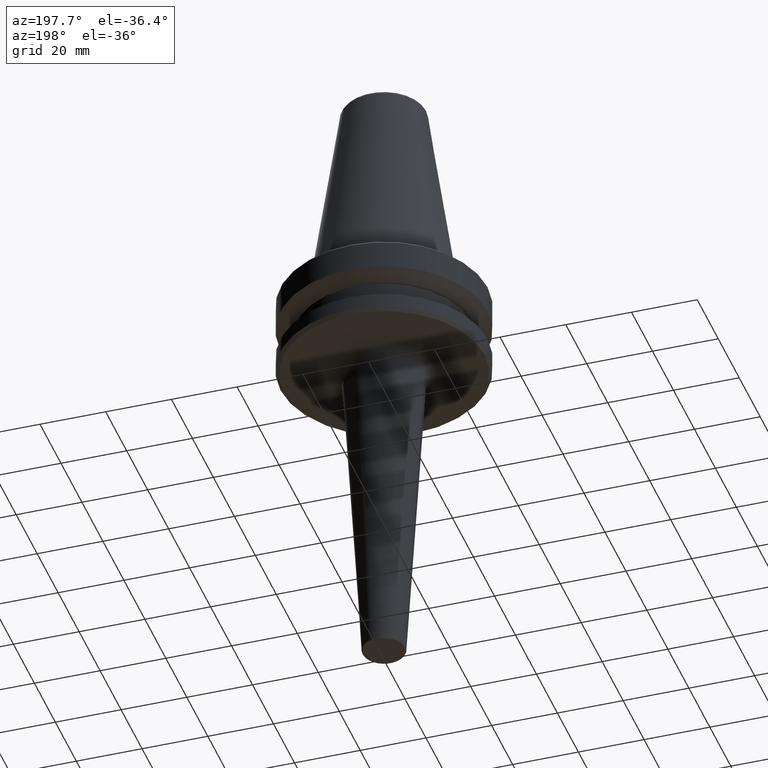
[diagram: clean part render]
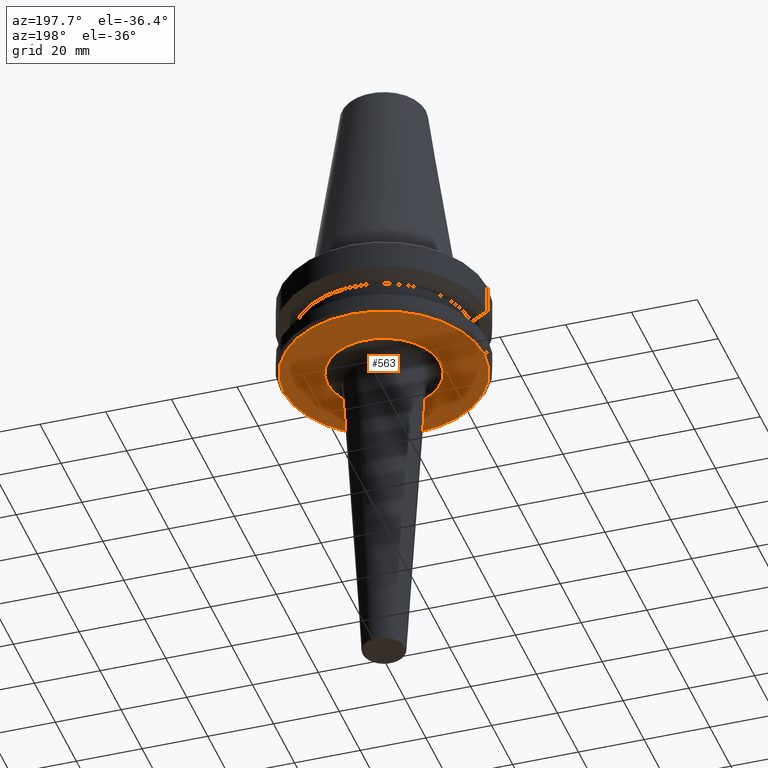
[diagram: same view with one face highlighted and labeled with its STEP entity id]
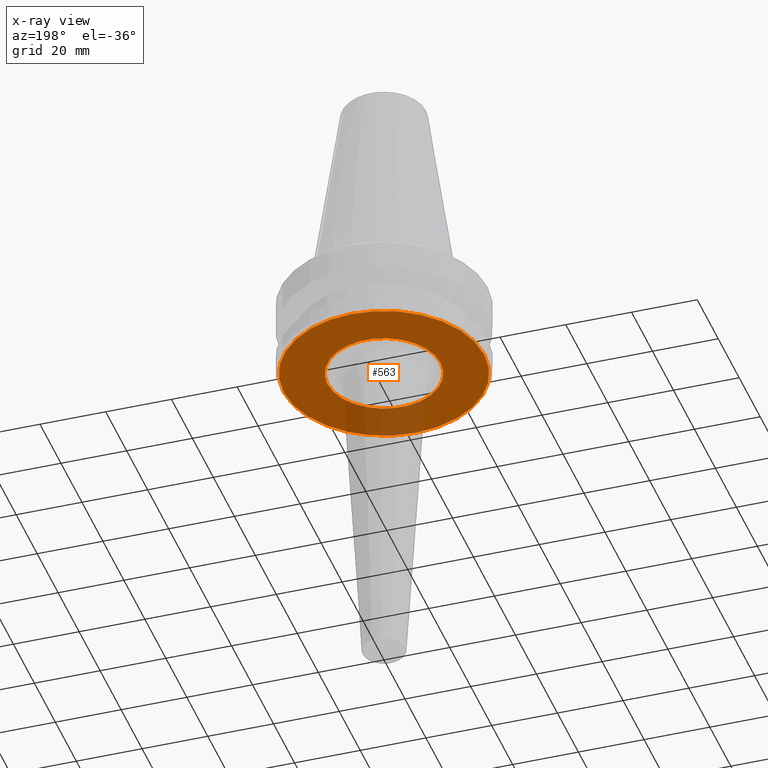
[diagram: x-ray of the same camera — body ghosted, the highlighted face saturated]
A machine part, auxiliary view. The second image highlights one B-rep face of the part: STEP entity #563.
The next image is the same camera in x-ray: the body ghosted, the highlighted face saturated — about 16% of this face is hidden behind the body in this view.
In plain terms, the highlighted planar face has unit normal (0, -0, 1).
Its self-contained STEP definition (entity closure, byte-faithful):
#25 = ORIENTED_EDGE ( 'NONE', *, *, #953, .F. ) ;
#47 = FACE_BOUND ( 'NONE', #400, .T. ) ;
#51 = PLANE ( 'NONE',  #367 ) ;
#65 = AXIS2_PLACEMENT_3D ( 'NONE', #720, #341, #121 ) ;
#117 = CARTESIAN_POINT ( 'NONE',  ( 0.0000000000000000000, 0.0000000000000000000, -92.40000000000803500 ) ) ;
#121 = DIRECTION ( 'NONE',  ( 1.000000000000000000, 0.0000000000000000000, 0.0000000000000000000 ) ) ;
#158 = AXIS2_PLACEMENT_3D ( 'NONE', #117, #771, #830 ) ;
#176 = FACE_OUTER_BOUND ( 'NONE', #1014, .T. ) ;
#181 = CARTESIAN_POINT ( 'NONE',  ( 0.0000000000000000000, 0.0000000000000000000, -92.40000000000809200 ) ) ;
#185 = CIRCLE ( 'NONE', #65, 17.20899191454727600 ) ;
#218 = ORIENTED_EDGE ( 'NONE', *, *, #368, .T. ) ;
#225 = DIRECTION ( 'NONE',  ( 1.000000000000000000, 0.0000000000000000000, 0.0000000000000000000 ) ) ;
#283 = CIRCLE ( 'NONE', #403, 30.49999999999241900 ) ;
#288 = VERTEX_POINT ( 'NONE', #1021 ) ;
#341 = DIRECTION ( 'NONE',  ( -0.0000000000000000000, -0.0000000000000000000, 1.000000000000000000 ) ) ;
#342 = DIRECTION ( 'NONE',  ( -0.0000000000000000000, -0.0000000000000000000, 1.000000000000000000 ) ) ;
#359 = DIRECTION ( 'NONE',  ( 1.000000000000000000, 0.0000000000000000000, 0.0000000000000000000 ) ) ;
#367 = AXIS2_PLACEMENT_3D ( 'NONE', #920, #941, #359 ) ;
#368 = EDGE_CURVE ( 'NONE', #505, #288, #564, .T. ) ;
#400 = EDGE_LOOP ( 'NONE', ( #218, #807 ) ) ;
#403 = AXIS2_PLACEMENT_3D ( 'NONE', #498, #342, #861 ) ;
#485 = CIRCLE ( 'NONE', #158, 30.49999999999241900 ) ;
#498 = CARTESIAN_POINT ( 'NONE',  ( 0.0000000000000000000, 0.0000000000000000000, -92.40000000000803500 ) ) ;
#505 = VERTEX_POINT ( 'NONE', #985 ) ;
#563 = ADVANCED_FACE ( 'NONE', ( #176, #47 ), #51, .F. ) ;
#564 = CIRCLE ( 'NONE', #921, 17.20899191454727600 ) ;
#590 = VERTEX_POINT ( 'NONE', #770 ) ;
#636 = EDGE_CURVE ( 'NONE', #590, #1019, #485, .T. ) ;
#668 = DIRECTION ( 'NONE',  ( -0.0000000000000000000, -0.0000000000000000000, 1.000000000000000000 ) ) ;
#720 = CARTESIAN_POINT ( 'NONE',  ( 0.0000000000000000000, 0.0000000000000000000, -92.40000000000809200 ) ) ;
#721 = ORIENTED_EDGE ( 'NONE', *, *, #636, .F. ) ;
#726 = EDGE_CURVE ( 'NONE', #288, #505, #185, .T. ) ;
#770 = CARTESIAN_POINT ( 'NONE',  ( 30.49999999999241900, 0.0000000000000000000, -92.40000000000803500 ) ) ;
#771 = DIRECTION ( 'NONE',  ( -0.0000000000000000000, -0.0000000000000000000, 1.000000000000000000 ) ) ;
#807 = ORIENTED_EDGE ( 'NONE', *, *, #726, .T. ) ;
#830 = DIRECTION ( 'NONE',  ( 1.000000000000000000, 0.0000000000000000000, 0.0000000000000000000 ) ) ;
#831 = CARTESIAN_POINT ( 'NONE',  ( -30.49999999999241900, 3.796405077356336000E-015, -92.40000000000803500 ) ) ;
#861 = DIRECTION ( 'NONE',  ( 1.000000000000000000, 0.0000000000000000000, 0.0000000000000000000 ) ) ;
#920 = CARTESIAN_POINT ( 'NONE',  ( 0.0000000000000000000, 3.859173315367737900E-013, -92.40000000000806300 ) ) ;
#921 = AXIS2_PLACEMENT_3D ( 'NONE', #181, #668, #225 ) ;
#941 = DIRECTION ( 'NONE',  ( 0.0000000000000000000, -0.0000000000000000000, 1.000000000000000000 ) ) ;
#953 = EDGE_CURVE ( 'NONE', #1019, #590, #283, .T. ) ;
#985 = CARTESIAN_POINT ( 'NONE',  ( 17.20899191454727600, 0.0000000000000000000, -92.40000000000809200 ) ) ;
#1014 = EDGE_LOOP ( 'NONE', ( #721, #25 ) ) ;
#1019 = VERTEX_POINT ( 'NONE', #831 ) ;
#1021 = CARTESIAN_POINT ( 'NONE',  ( -17.20899191454727600, 2.107493686470300200E-015, -92.40000000000809200 ) ) ;